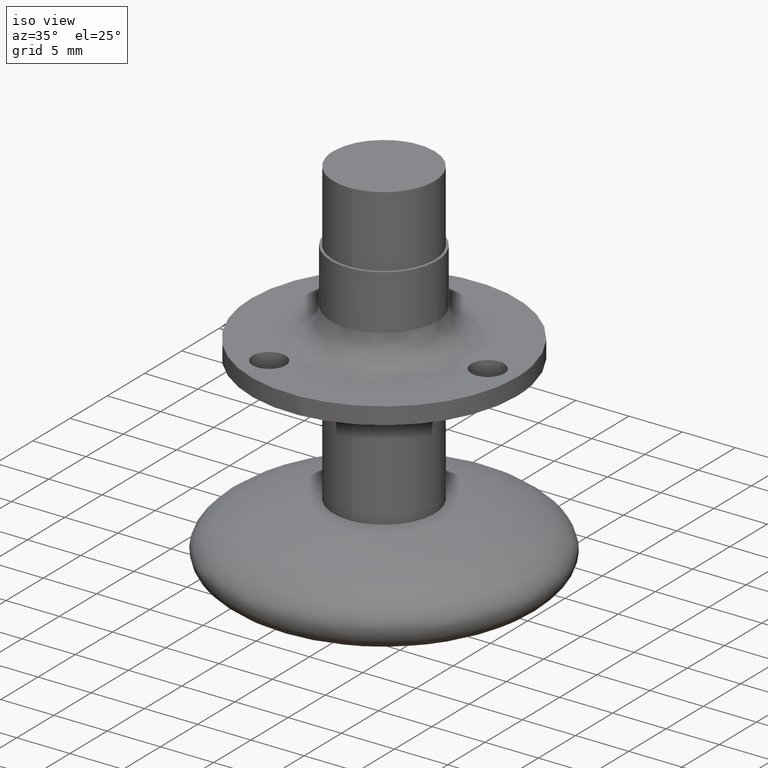
[diagram: clean part render]
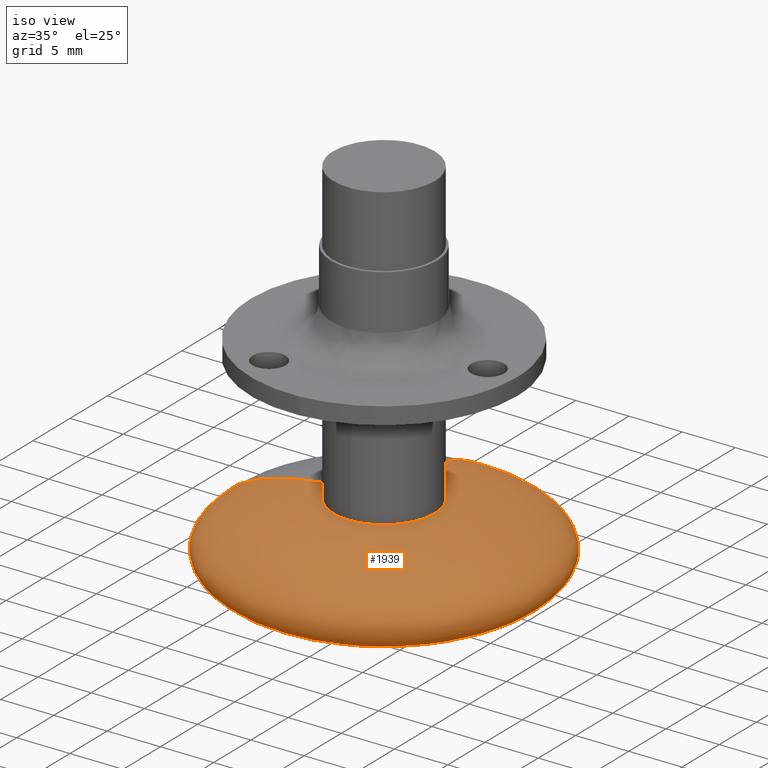
[diagram: same view with one face highlighted and labeled with its STEP entity id]
A machine part, iso view. The second image highlights one B-rep face of the part: STEP entity #1939.
In plain terms, the highlighted face is a freeform B-spline surface patch.
Its self-contained STEP definition (entity closure, byte-faithful):
#1722=CARTESIAN_POINT('',(0.290738367728656,-4.753617301750557,-28.232837776987999));
#1723=VERTEX_POINT('',#1722);
#1729=CARTESIAN_POINT('',(4.762500000000000,0.0,-28.232837776987999));
#1730=VERTEX_POINT('',#1729);
#1731=CARTESIAN_POINT('',(4.762500000000000,0.0,-28.232837776987999));
#1732=CARTESIAN_POINT('',(4.762500000000000,-4.480117649739170,-28.232837776988010));
#1733=CARTESIAN_POINT('',(0.290738367728656,-4.753617301750557,-28.232837776987999));
#1741=(BOUNDED_CURVE()B_SPLINE_CURVE(2,(#1731,#1732,#1733),.UNSPECIFIED.,.F.,.U.)B_SPLINE_CURVE_WITH_KNOTS((3,3),(0.500000000000000,0.739333154686955),.UNSPECIFIED.)CURVE()GEOMETRIC_REPRESENTATION_ITEM()RATIONAL_B_SPLINE_CURVE((1.0,0.719603767819840,0.976072454119788))REPRESENTATION_ITEM(''));
#1742=EDGE_CURVE('',#1730,#1723,#1741,.T.);
#1744=CARTESIAN_POINT('',(-0.549898392187730,4.730646679711908,-28.232837776988038));
#1745=VERTEX_POINT('',#1744);
#1746=CARTESIAN_POINT('',(-0.549898392187730,4.730646679711908,-28.232837776988038));
#1747=CARTESIAN_POINT('',(-0.275871761096358,4.762499999999999,-28.232837776987999));
#1748=CARTESIAN_POINT('',(0.0,4.762500000000000,-28.232837776987999));
#1749=CARTESIAN_POINT('',(4.762500000000000,4.762500000000000,-28.232837776988003));
#1750=CARTESIAN_POINT('',(4.762500000000000,0.0,-28.232837776987999));
#1758=(BOUNDED_CURVE()B_SPLINE_CURVE(2,(#1746,#1747,#1748,#1749,#1750),.UNSPECIFIED.,.F.,.U.)B_SPLINE_CURVE_WITH_KNOTS((3,2,3),(0.229999999998746,0.250000000000000,0.500000000000000),.UNSPECIFIED.)CURVE()GEOMETRIC_REPRESENTATION_ITEM()RATIONAL_B_SPLINE_CURVE((0.956886118188191,0.976568542493454,1.0,0.707106781186548,1.0))REPRESENTATION_ITEM(''));
#1759=EDGE_CURVE('',#1745,#1730,#1758,.T.);
#1761=CARTESIAN_POINT('',(-4.762499999999996,0.0,-28.232837776988038));
#1762=VERTEX_POINT('',#1761);
#1776=CARTESIAN_POINT('',(-4.458383793921490,-1.674580603046092,-28.232837776987999));
#1777=VERTEX_POINT('',#1776);
#1778=CARTESIAN_POINT('',(-4.458383793921491,-1.674580603046093,-28.232837776987996));
#1779=CARTESIAN_POINT('',(-4.762500000000000,-0.864905176149823,-28.232837776988003));
#1780=CARTESIAN_POINT('',(-4.762500000000000,0.0,-28.232837776987999));
#1788=(BOUNDED_CURVE()B_SPLINE_CURVE(2,(#1778,#1779,#1780),.UNSPECIFIED.,.F.,.U.)B_SPLINE_CURVE_WITH_KNOTS((3,3),(0.940284170898468,1.0),.UNSPECIFIED.)CURVE()GEOMETRIC_REPRESENTATION_ITEM()RATIONAL_B_SPLINE_CURVE((0.893499554635225,0.930038554401353,1.0))REPRESENTATION_ITEM(''));
#1789=EDGE_CURVE('',#1777,#1762,#1788,.T.);
#1829=CARTESIAN_POINT('',(0.290738367728656,-4.753617301750557,-28.232837776987999));
#1830=CARTESIAN_POINT('',(0.145504876873832,-4.762500000000000,-28.232837776987996));
#1831=CARTESIAN_POINT('',(0.0,-4.762500000000000,-28.232837776987999));
#1832=CARTESIAN_POINT('',(-3.298553199484827,-4.762500000000000,-28.232837776988003));
#1833=CARTESIAN_POINT('',(-4.458383793921489,-1.674580603046093,-28.232837776987999));
#1841=(BOUNDED_CURVE()B_SPLINE_CURVE(2,(#1829,#1830,#1831,#1832,#1833),.UNSPECIFIED.,.F.,.U.)B_SPLINE_CURVE_WITH_KNOTS((3,2,3),(0.739333154686955,0.750000000000000,0.940284170898468),.UNSPECIFIED.)CURVE()GEOMETRIC_REPRESENTATION_ITEM()RATIONAL_B_SPLINE_CURVE((0.976072454119788,0.987503013366708,1.0,0.777068226785194,0.893499554635226))REPRESENTATION_ITEM(''));
#1842=EDGE_CURVE('',#1723,#1777,#1841,.T.);
#1848=CARTESIAN_POINT('',(-0.549898392170187,4.730646679713941,-28.232837776988092));
#1849=CARTESIAN_POINT('',(-1.946265731204758,16.743266847587574,-29.447598008043922));
#1850=CARTESIAN_POINT('',(-1.709412938547479,14.705677916397612,-33.223799004021970));
#1851=CARTESIAN_POINT('',(-1.472560145890199,12.668088985207646,-37.0));
#1852=CARTESIAN_POINT('',(-2.980354E-016,4.426227E-014,-36.999999999999993));
#1853=CARTESIAN_POINT('',(-0.275871761078639,4.762499999999989,-28.232837776988084));
#1854=CARTESIAN_POINT('',(-0.976398117251250,16.856005903712397,-29.447598008043929));
#1855=CARTESIAN_POINT('',(-0.857574352793807,14.804697078133612,-33.223799004021963));
#1856=CARTESIAN_POINT('',(-0.738750588336363,12.753388252554828,-37.0));
#1857=CARTESIAN_POINT('',(0.0,4.456030E-014,-37.0));
#1858=CARTESIAN_POINT('',(0.0,4.762499999999990,-28.232837776988081));
#1859=CARTESIAN_POINT('',(0.0,16.856005903712401,-29.447598008043929));
#1860=CARTESIAN_POINT('',(0.0,14.804697078133611,-33.223799004021963));
#1861=CARTESIAN_POINT('',(0.0,12.753388252554828,-37.000000000000007));
#1862=CARTESIAN_POINT('',(0.0,4.456030E-014,-37.0));
#1863=CARTESIAN_POINT('',(4.762499999999990,4.762499999999990,-28.232837776988088));
#1864=CARTESIAN_POINT('',(16.856005903712397,16.856005903712397,-29.447598008043919));
#1865=CARTESIAN_POINT('',(14.804697078133620,14.804697078133620,-33.223799004021970));
#1866=CARTESIAN_POINT('',(12.753388252554828,12.753388252554828,-37.000000000000007));
#1867=CARTESIAN_POINT('',(4.456030E-014,0.0,-37.0));
#1868=CARTESIAN_POINT('',(4.762499999999990,0.0,-28.232837776988081));
#1869=CARTESIAN_POINT('',(16.856005903712401,0.0,-29.447598008043929));
#1870=CARTESIAN_POINT('',(14.804697078133611,0.0,-33.223799004021963));
#1871=CARTESIAN_POINT('',(12.753388252554828,0.0,-37.000000000000007));
#1872=CARTESIAN_POINT('',(4.456030E-014,0.0,-37.0));
#1873=CARTESIAN_POINT('',(4.762499999999990,-4.762499999999990,-28.232837776988088));
#1874=CARTESIAN_POINT('',(16.856005903712397,-16.856005903712397,-29.447598008043919));
#1875=CARTESIAN_POINT('',(14.804697078133620,-14.804697078133620,-33.223799004021970));
#1876=CARTESIAN_POINT('',(12.753388252554828,-12.753388252554828,-37.000000000000007));
#1877=CARTESIAN_POINT('',(0.0,-4.456030E-014,-37.0));
#1878=CARTESIAN_POINT('',(0.0,-4.762499999999990,-28.232837776988081));
#1879=CARTESIAN_POINT('',(0.0,-16.856005903712401,-29.447598008043929));
#1880=CARTESIAN_POINT('',(0.0,-14.804697078133611,-33.223799004021963));
#1881=CARTESIAN_POINT('',(0.0,-12.753388252554828,-37.000000000000007));
#1882=CARTESIAN_POINT('',(0.0,-4.456030E-014,-37.0));
#1883=CARTESIAN_POINT('',(-4.762499999999990,-4.762499999999990,-28.232837776988088));
#1884=CARTESIAN_POINT('',(-16.856005903712397,-16.856005903712397,-29.447598008043919));
#1885=CARTESIAN_POINT('',(-14.804697078133620,-14.804697078133620,-33.223799004021970));
#1886=CARTESIAN_POINT('',(-12.753388252554828,-12.753388252554828,-37.000000000000007));
#1887=CARTESIAN_POINT('',(-4.456030E-014,0.0,-37.0));
#1888=CARTESIAN_POINT('',(-4.762499999999990,0.0,-28.232837776988081));
#1889=CARTESIAN_POINT('',(-16.856005903712401,0.0,-29.447598008043929));
#1890=CARTESIAN_POINT('',(-14.804697078133611,0.0,-33.223799004021963));
#1891=CARTESIAN_POINT('',(-12.753388252554828,0.0,-37.000000000000007));
#1892=CARTESIAN_POINT('',(-4.456030E-014,0.0,-37.0));
#1900=(BOUNDED_SURFACE()B_SPLINE_SURFACE(2,2,((#1848,#1853,#1858,#1863,#1868,#1873,#1878,#1883,#1888),(#1849,#1854,#1859,#1864,#1869,#1874,#1879,#1884,#1889),(#1850,#1855,#1860,#1865,#1870,#1875,#1880,#1885,#1890),(#1851,#1856,#1861,#1866,#1871,#1876,#1881,#1886,#1891),(#1852,#1857,#1862,#1867,#1872,#1877,#1882,#1887,#1892)),.UNSPECIFIED.,.F.,.F.,.U.)B_SPLINE_SURFACE_WITH_KNOTS((3,2,3),(3,2,2,2,3),(0.0,0.500000000000000,1.0),(0.230000000000000,0.250000000000000,0.500000000000000,0.750000000000000,1.0),.UNSPECIFIED.)GEOMETRIC_REPRESENTATION_ITEM()RATIONAL_B_SPLINE_SURFACE(((0.956886118190660,0.976568542494924,1.0,0.707106781186548,1.0,0.707106781186548,1.0,0.707106781186548,1.0),(0.729007889870928,0.744003031232919,0.761854389997194,0.538712405443756,0.761854389997194,0.538712405443756,0.761854389997194,0.538712405443756,0.761854389997194),(0.956886118190660,0.976568542494924,1.0,0.707106781186548,1.0,0.707106781186548,1.0,0.707106781186548,1.0),(0.729007889870928,0.744003031232919,0.761854389997194,0.538712405443756,0.761854389997194,0.538712405443756,0.761854389997194,0.538712405443756,0.761854389997194),(0.956886118190660,0.976568542494924,1.0,0.707106781186548,1.0,0.707106781186548,1.0,0.707106781186548,1.0)))REPRESENTATION_ITEM('')SURFACE());
#1901=ORIENTED_EDGE('',*,*,#1759,.T.);
#1902=ORIENTED_EDGE('',*,*,#1742,.T.);
#1903=ORIENTED_EDGE('',*,*,#1842,.T.);
#1904=ORIENTED_EDGE('',*,*,#1789,.T.);
#1905=CARTESIAN_POINT('',(-2.232049E-014,2.227672E-014,-37.0));
#1906=VERTEX_POINT('',#1905);
#1907=CARTESIAN_POINT('',(-4.762499999999990,0.0,-28.232837776988081));
#1908=CARTESIAN_POINT('',(-16.856005903712401,0.0,-29.447598008043929));
#1909=CARTESIAN_POINT('',(-14.804697078133611,0.0,-33.223799004021963));
#1910=CARTESIAN_POINT('',(-12.753388252554828,0.0,-37.000000000000007));
#1911=CARTESIAN_POINT('',(-4.456030E-014,0.0,-37.0));
#1919=(BOUNDED_CURVE()B_SPLINE_CURVE(2,(#1907,#1908,#1909,#1910,#1911),.UNSPECIFIED.,.F.,.U.)B_SPLINE_CURVE_WITH_KNOTS((3,2,3),(0.0,0.500000000000000,1.0),.UNSPECIFIED.)CURVE()GEOMETRIC_REPRESENTATION_ITEM()RATIONAL_B_SPLINE_CURVE((1.0,0.761854389997194,1.0,0.761854389997194,1.0))REPRESENTATION_ITEM(''));
#1920=EDGE_CURVE('',#1762,#1906,#1919,.T.);
#1921=ORIENTED_EDGE('',*,*,#1920,.T.);
#1922=CARTESIAN_POINT('',(-0.549898392187730,4.730646679711908,-28.232837776988045));
#1923=CARTESIAN_POINT('',(-1.946265731204759,16.743266847587574,-29.447598008043922));
#1924=CARTESIAN_POINT('',(-1.709412938547479,14.705677916397612,-33.223799004021970));
#1925=CARTESIAN_POINT('',(-1.472560145890198,12.668088985207646,-37.0));
#1926=CARTESIAN_POINT('',(-2.980354E-016,4.426227E-014,-36.999999999999993));
#1934=(BOUNDED_CURVE()B_SPLINE_CURVE(2,(#1922,#1923,#1924,#1925,#1926),.UNSPECIFIED.,.F.,.U.)B_SPLINE_CURVE_WITH_KNOTS((3,2,3),(0.0,0.500000000000000,1.0),.UNSPECIFIED.)CURVE()GEOMETRIC_REPRESENTATION_ITEM()RATIONAL_B_SPLINE_CURVE((0.956886118190660,0.729007889870928,0.956886118190660,0.729007889870928,0.956886118190660))REPRESENTATION_ITEM(''));
#1935=EDGE_CURVE('',#1745,#1906,#1934,.T.);
#1936=ORIENTED_EDGE('',*,*,#1935,.F.);
#1937=EDGE_LOOP('',(#1901,#1902,#1903,#1904,#1921,#1936));
#1938=FACE_OUTER_BOUND('',#1937,.T.);
#1939=ADVANCED_FACE('',(#1938),#1900,.F.);